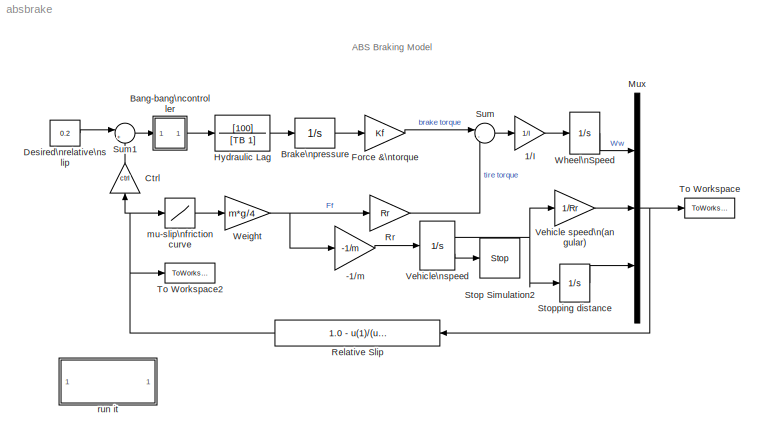
MODEL absbrake
KIND model
CONFIG PreLoadFcn = absdata
BLOCK [Gain] -1//m
  Gain = -1/m
BLOCK [Gain] 1//I
  Gain = 1/I
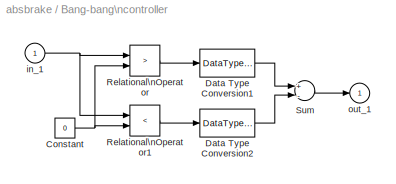
BLOCK [SubSystem] Bang-bang\ncontroller
  MaskDescription = y = sign(x)
  MaskDisplay = plot(-50,-50,50,50,[-50,50],[0,0],[0,0],[-50,50],[-40,0],[-30,-30],[0,40],[30,30])
  MaskHelp = Sign Function:<path> = 1 if x > 0<path> = 0 if x = 0<path> = -1 if x < 0
  MaskIconFrame = on
  MaskIconOpaque = on
  MaskIconRotate = none
  MaskIconUnits = autoscale
  MaskType = Sign
  MinAlgLoopOccurrences = off
  Ports = [1, 1]
  PropExecContextAcrossSSBoundary = on
  RTWSystemCode = Auto
  ShowPortLabels = off
  TreatAsAtomicUnit = off
BLOCK [Constant] Bang-bang\ncontroller/Constant
  Value = 0
BLOCK [DataTypeConversion] Bang-bang\ncontroller/Data Type Conversion1
  OutDataTypeMode = double
BLOCK [DataTypeConversion] Bang-bang\ncontroller/Data Type Conversion2
  OutDataTypeMode = double
BLOCK [RelationalOperator] Bang-bang\ncontroller/Relational\nOperator
  Operator = >
BLOCK [RelationalOperator] Bang-bang\ncontroller/Relational\nOperator1
  Operator = <
BLOCK [Sum] Bang-bang\ncontroller/Sum
  Inputs = +-
  Ports = [2, 1]
BLOCK [Inport] Bang-bang\ncontroller/in_1
  IconDisplay = Port number
  LatchInput = off
  Port = 1
BLOCK [Outport] Bang-bang\ncontroller/out_1
  IconDisplay = Port number
  InitialOutput = 0
BLOCK [Integrator] Brake\npressure
  LimitOutput = on
  LowerSaturationLimit = 0
  Ports = [1, 1]
  UpperSaturationLimit = PBmax
BLOCK [Gain] Ctrl
  Gain = ctrl
BLOCK [Constant] Desired\nrelative\nslip
  Value = 0.2
BLOCK [Gain] Force &\ntorque
  Gain = Kf
BLOCK [TransferFcn] Hydraulic Lag 
  Denominator = [TB 1]
  Numerator = [100]
BLOCK [Mux] Mux
  Inputs = 3
  Ports = [3, 1]
BLOCK [Fcn] Relative Slip
  Expr = 1.0 - u(1)/(u(2) + (u(2)==0)*eps)
BLOCK [Gain] Rr
  Gain = Rr
BLOCK [Stop] Stop Simulation2
BLOCK [Integrator] Stopping distance
  LowerSaturationLimit = 0
  Ports = [1, 1]
  UpperSaturationLimit = 1000
BLOCK [Sum] Sum
  IconShape = round
  Inputs = |-+
  Ports = [2, 1]
BLOCK [Sum] Sum1
  IconShape = round
  Inputs = |+-
  Ports = [2, 1]
BLOCK [ToWorkspace] To Workspace
  MaxDataPoints = 10000
  SaveFormat = Array
  VariableName = yout
BLOCK [ToWorkspace] To Workspace2
  MaxDataPoints = 10000
  SaveFormat = Array
  VariableName = slp
BLOCK [Gain] Vehicle speed\n(angular)
  Gain = 1/Rr
BLOCK [Integrator] Vehicle\nspeed
  InitialCondition = v0
  LimitOutput = on
  LowerSaturationLimit = 0
  Ports = [1, 2]
  ShowSaturationPort = on
  UpperSaturationLimit = 1000
BLOCK [Gain] Weight
  Gain = m*g/4
BLOCK [Integrator] Wheel\nSpeed
  InitialCondition = v0/Rr
  LimitOutput = on
  LowerSaturationLimit = 0
  Ports = [1, 1]
  UpperSaturationLimit = 1000
BLOCK [Lookup] mu-slip\nfriction curve
  DialogController = Simulink.DDGSource
  InputValues = slip
  OutputValues = mu
BLOCK [SubSystem] run it
  MaskDisplay = disp('Double click to\\nrun model and\\nplot the results')
  MaskIconFrame = on
  MaskIconOpaque = on
  MaskIconRotate = none
  MaskIconUnits = autoscale
  MinAlgLoopOccurrences = off
  OpenFcn = runabs
  Ports = []
  PropExecContextAcrossSSBoundary = on
  RTWSystemCode = Auto
  ShowPortLabels = off
  TreatAsAtomicUnit = off
ANNOTATION (root): ABS Braking Model
LINE -1//m:1 -> Vehicle\nspeed:1
LINE 1//I:1 -> Wheel\nSpeed:1
NET Bang-bang\ncontroller/Constant:1 -> Bang-bang\ncontroller/Relational\nOperator1:2, Bang-bang\ncontroller/Relational\nOperator:2
LINE Bang-bang\ncontroller/Data Type Conversion1:1 -> Bang-bang\ncontroller/Sum:1
LINE Bang-bang\ncontroller/Data Type Conversion2:1 -> Bang-bang\ncontroller/Sum:2
LINE Bang-bang\ncontroller/Relational\nOperator1:1 -> Bang-bang\ncontroller/Data Type Conversion2:1
LINE Bang-bang\ncontroller/Relational\nOperator:1 -> Bang-bang\ncontroller/Data Type Conversion1:1
LINE Bang-bang\ncontroller/Sum:1 -> Bang-bang\ncontroller/out_1:1
NET Bang-bang\ncontroller/in_1:1 -> Bang-bang\ncontroller/Relational\nOperator1:1, Bang-bang\ncontroller/Relational\nOperator:1
LINE Bang-bang\ncontroller:1 -> Hydraulic Lag :1
LINE Brake\npressure:1 -> Force &\ntorque:1
LINE Ctrl:1 -> Sum1:2
LINE Desired\nrelative\nslip:1 -> Sum1:1
LINE Force &\ntorque:1 -> Sum:1
LINE Hydraulic Lag :1 -> Brake\npressure:1
NET Mux:1 -> Relative Slip:1, To Workspace:1
NET Relative Slip:1 -> Ctrl:1, To Workspace2:1, mu-slip\nfriction curve:1
LINE Rr:1 -> Sum:2
LINE Stopping distance:1 -> Mux:3
LINE Sum1:1 -> Bang-bang\ncontroller:1
LINE Sum:1 -> 1//I:1
LINE Vehicle speed\n(angular):1 -> Mux:2
NET Vehicle\nspeed:1 -> Stopping distance:1, Vehicle speed\n(angular):1
LINE Vehicle\nspeed:2 -> Stop Simulation2:1
NET Weight:1 -> -1//m:1, Rr:1
LINE Wheel\nSpeed:1 -> Mux:1
LINE mu-slip\nfriction curve:1 -> Weight:1
note: NET lines group one-source signal fan-out (src -> all destinations, sorted); 1:1 wires keep LINE
note: 3 file-system paths scrubbed to <path> (not preserved elsewhere — flat text is the only slx artifact)
